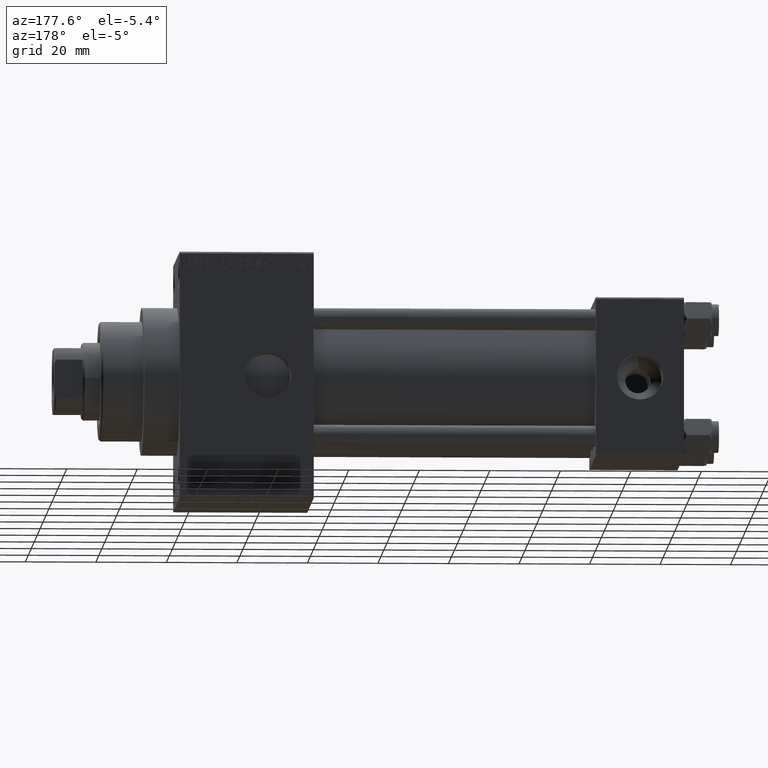
[diagram: clean part render]
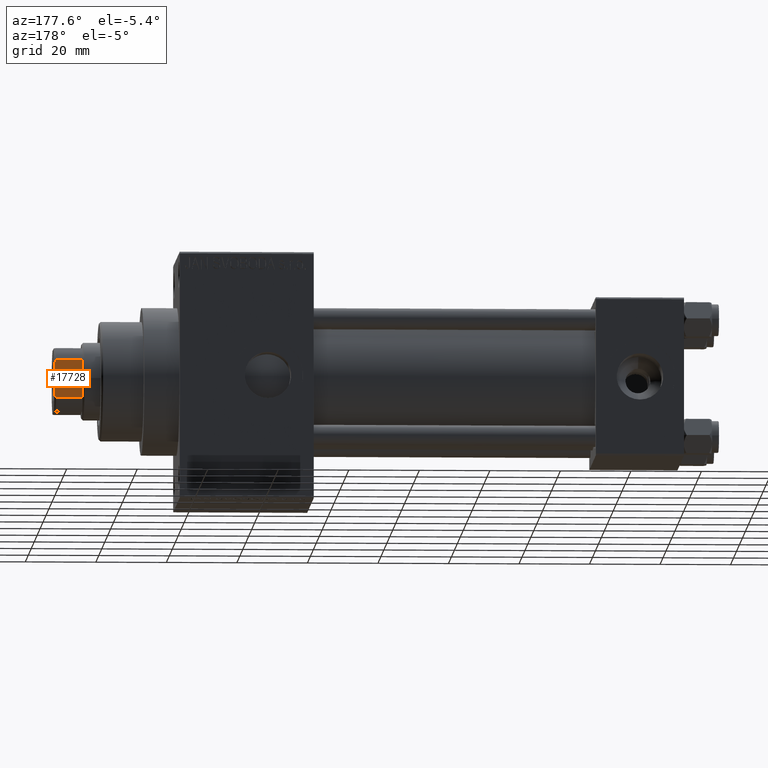
[diagram: same view with one face highlighted and labeled with its STEP entity id]
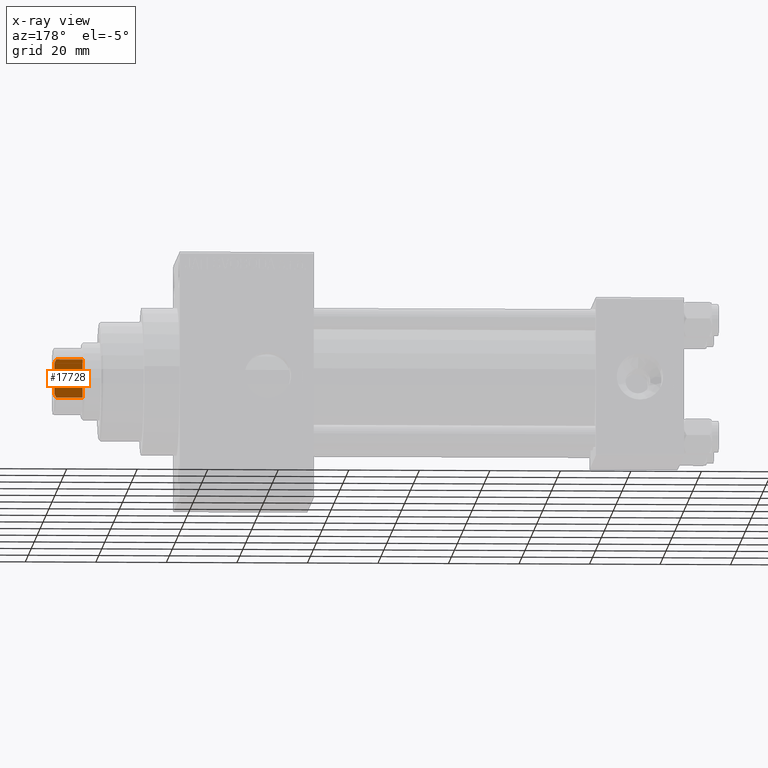
[diagram: x-ray of the same camera — body ghosted, the highlighted face saturated]
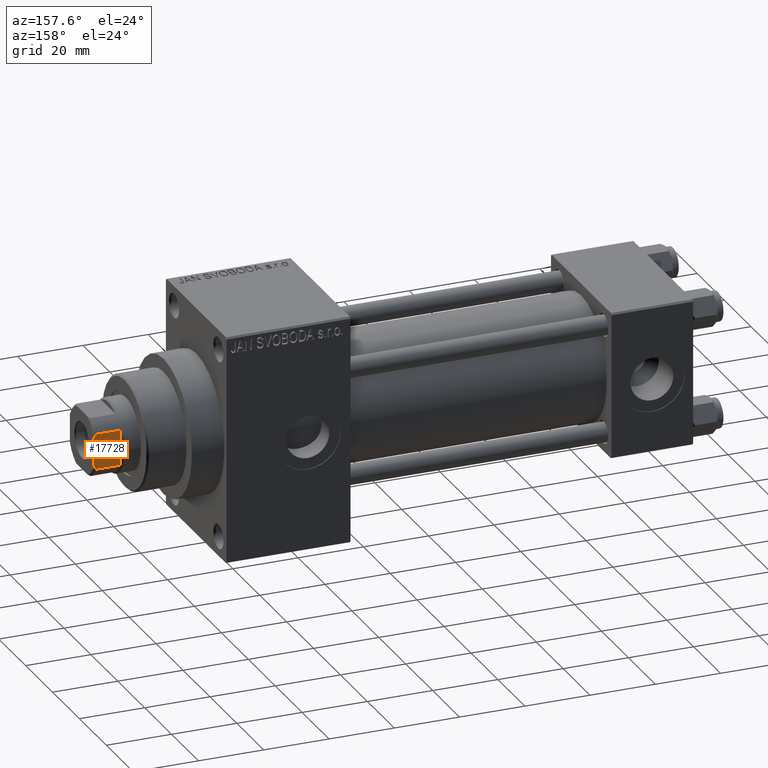
[diagram: same view with one face highlighted and labeled with its STEP entity id]
A machine part, auxiliary view. The second image highlights one B-rep face of the part: STEP entity #17728.
The next image is the same camera in x-ray: the body ghosted, the highlighted face saturated — about 0% of this face is hidden behind the body in this view.
A second angle (auxiliary view) of the same face is appended — the face is thin or edge-on in the first view.
In plain terms, the highlighted planar face has unit normal (0, -1, -0).
Its self-contained STEP definition (entity closure, byte-faithful):
#789 = DIRECTION ( 'NONE',  ( 9.637352644315595243E-17, -1.000000000000000000, 0.000000000000000000 ) ) ;
#2173 = VERTEX_POINT ( 'NONE', #5523 ) ;
#3424 = VERTEX_POINT ( 'NONE', #19876 ) ;
#5523 = CARTESIAN_POINT ( 'NONE',  ( -9.000000000000003553, -4.358898943540677529, 153.0000000000000284 ) ) ;
#6086 = CARTESIAN_POINT ( 'NONE',  ( -9.000000000000000000, -5.408326913195987018, 152.5000000000000284 ) ) ;
#7147 = CARTESIAN_POINT ( 'NONE',  ( -9.000000000000001776, 4.714305797500254691, 152.8450817439748732 ) ) ;
#7291 = CARTESIAN_POINT ( 'NONE',  ( -9.000000000000000000, -5.408326913195987018, 152.5000000000000284 ) ) ;
#7725 = CARTESIAN_POINT ( 'NONE',  ( -9.000000000000003553, 8.999999999999998224, 145.0000000000000284 ) ) ;
#8113 = DIRECTION ( 'NONE',  ( -0.000000000000000000, -0.000000000000000000, 1.000000000000000000 ) ) ;
#9193 = ORIENTED_EDGE ( 'NONE', *, *, #13458, .T. ) ;
#9244 = PLANE ( 'NONE',  #42672 ) ;
#10294 = CARTESIAN_POINT ( 'NONE',  ( -9.000000000000003553, -4.358898943540677529, 153.0000000000000284 ) ) ;
#11211 = ORIENTED_EDGE ( 'NONE', *, *, #43323, .F. ) ;
#11264 = CARTESIAN_POINT ( 'NONE',  ( -8.999999999999996447, 5.408326913195991459, 152.5000000000000568 ) ) ;
#12356 = ORIENTED_EDGE ( 'NONE', *, *, #31247, .T. ) ;
#13458 = EDGE_CURVE ( 'NONE', #44915, #22204, #26294, .T. ) ;
#16212 = FACE_OUTER_BOUND ( 'NONE', #37571, .T. ) ;
#16910 = CARTESIAN_POINT ( 'NONE',  ( -8.999999999999996447, 5.408326913195989682, 145.0000000000000284 ) ) ;
#17728 = ADVANCED_FACE ( 'NONE', ( #16212 ), #9244, .F. ) ;
#18479 = CARTESIAN_POINT ( 'NONE',  ( -9.000000000000001776, -4.714305797500248474, 152.8450817439748732 ) ) ;
#18828 = EDGE_CURVE ( 'NONE', #20212, #3424, #23357, .T. ) ;
#19704 = VECTOR ( 'NONE', #789, 1000.000000000000000 ) ;
#19732 = VECTOR ( 'NONE', #8113, 1000.000000000000000 ) ;
#19876 = CARTESIAN_POINT ( 'NONE',  ( -9.000000000000000000, -5.408326913195987018, 145.0000000000000284 ) ) ;
#20212 = VERTEX_POINT ( 'NONE', #16910 ) ;
#21354 = ORIENTED_EDGE ( 'NONE', *, *, #45064, .F. ) ;
#22204 = VERTEX_POINT ( 'NONE', #11264 ) ;
#22281 = CARTESIAN_POINT ( 'NONE',  ( -8.999999999999996447, 5.408326913195991459, 152.5000000000000568 ) ) ;
#23357 = LINE ( 'NONE', #7725, #19704 ) ;
#26175 = CARTESIAN_POINT ( 'NONE',  ( -9.000000000000000000, -5.063687070142449898, 152.6775166608139500 ) ) ;
#26294 = B_SPLINE_CURVE_WITH_KNOTS ( 'NONE', 3,
 ( #38170, #7147, #41891, #22281 ),
 .UNSPECIFIED., .F., .F.,
 ( 4, 4 ),
 ( 0.000000000000000000, 0.001162453897363179348 ),
 .UNSPECIFIED. ) ;
#26424 = CARTESIAN_POINT ( 'NONE',  ( -9.000000000000003553, 4.358898943540677529, 153.0000000000000284 ) ) ;
#27085 = VECTOR ( 'NONE', #32186, 1000.000000000000000 ) ;
#28388 = CARTESIAN_POINT ( 'NONE',  ( -9.000000000000003553, 8.999999999999998224, 153.0000000000000284 ) ) ;
#29307 = EDGE_CURVE ( 'NONE', #3424, #35800, #32435, .T. ) ;
#31247 = EDGE_CURVE ( 'NONE', #35800, #2173, #48622, .T. ) ;
#32079 = DIRECTION ( 'NONE',  ( 1.000000000000000000, 9.637352644315595243E-17, -0.000000000000000000 ) ) ;
#32186 = DIRECTION ( 'NONE',  ( -0.000000000000000000, -0.000000000000000000, 1.000000000000000000 ) ) ;
#32435 = LINE ( 'NONE', #46847, #27085 ) ;
#35157 = CARTESIAN_POINT ( 'NONE',  ( -8.999999999999996447, 5.408326913195991459, -0.001000000000001000089 ) ) ;
#35800 = VERTEX_POINT ( 'NONE', #7291 ) ;
#37066 = VECTOR ( 'NONE', #40283, 1000.000000000000000 ) ;
#37571 = EDGE_LOOP ( 'NONE', ( #40995, #12356, #21354, #9193, #11211, #46559 ) ) ;
#38170 = CARTESIAN_POINT ( 'NONE',  ( -9.000000000000003553, 4.358898943540677529, 153.0000000000000284 ) ) ;
#38637 = LINE ( 'NONE', #35157, #19732 ) ;
#40283 = DIRECTION ( 'NONE',  ( 9.637352644315595243E-17, -1.000000000000000000, 0.000000000000000000 ) ) ;
#40528 = LINE ( 'NONE', #28388, #37066 ) ;
#40995 = ORIENTED_EDGE ( 'NONE', *, *, #29307, .T. ) ;
#41891 = CARTESIAN_POINT ( 'NONE',  ( -9.000000000000003553, 5.063687070142449009, 152.6775166608139500 ) ) ;
#42672 = AXIS2_PLACEMENT_3D ( 'NONE', #43503, #32079, #46731 ) ;
#43323 = EDGE_CURVE ( 'NONE', #20212, #22204, #38637, .T. ) ;
#43503 = CARTESIAN_POINT ( 'NONE',  ( -9.000000000000003553, 8.999999999999998224, 153.0000000000000284 ) ) ;
#44915 = VERTEX_POINT ( 'NONE', #26424 ) ;
#45064 = EDGE_CURVE ( 'NONE', #44915, #2173, #40528, .T. ) ;
#46559 = ORIENTED_EDGE ( 'NONE', *, *, #18828, .T. ) ;
#46731 = DIRECTION ( 'NONE',  ( -9.637352644315595243E-17, 1.000000000000000000, 0.000000000000000000 ) ) ;
#46847 = CARTESIAN_POINT ( 'NONE',  ( -9.000000000000000000, -5.408326913195987018, -0.001000000000001000089 ) ) ;
#48622 = B_SPLINE_CURVE_WITH_KNOTS ( 'NONE', 3,
 ( #6086, #26175, #18479, #10294 ),
 .UNSPECIFIED., .F., .F.,
 ( 4, 4 ),
 ( 0.000000000000000000, 0.001162453897363188889 ),
 .UNSPECIFIED. ) ;